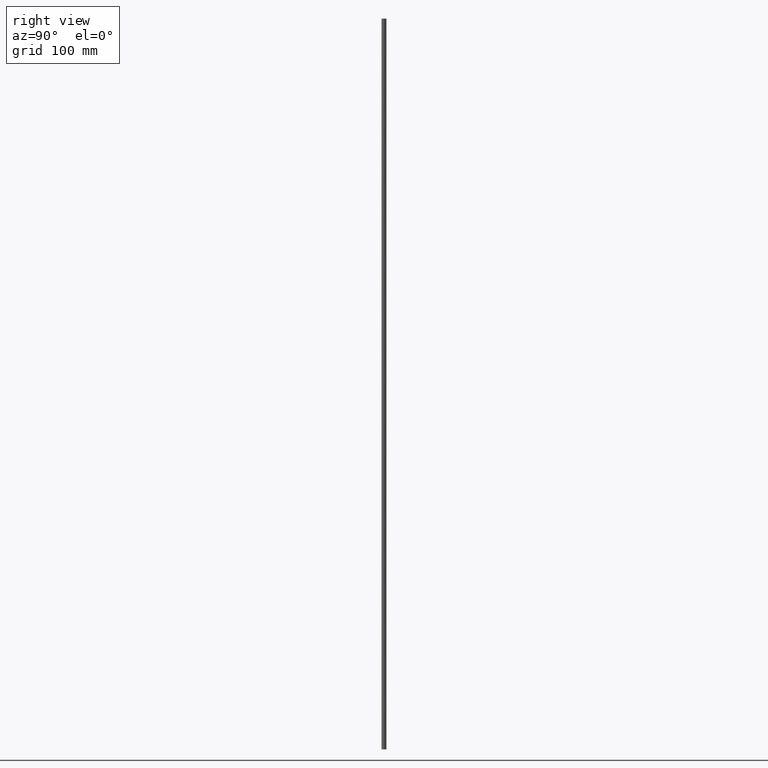
[diagram: clean part render]
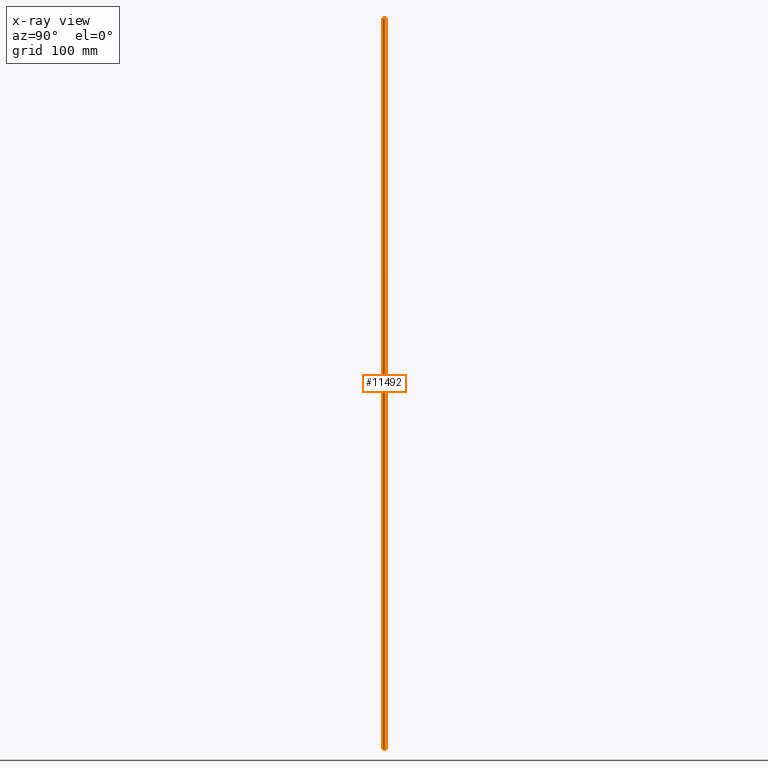
[diagram: x-ray — body ghosted, one internal face saturated and labeled with its STEP entity id]
A machine part, right view, then the same camera in x-ray: the body is ghosted and one INTERNAL B-rep face — a face not visible from any outside direction — is saturated and labeled: STEP entity #11492.
In plain terms, the highlighted face is a freeform B-spline surface patch.
Its self-contained STEP definition (entity closure, byte-faithful):
#11390=CARTESIAN_POINT('',(0.206559910649327,-1.737766671136416,1024.999977450000900));
#11391=CARTESIAN_POINT('',(0.156825775116461,-1.743678327035060,1024.999977450000000));
#11392=CARTESIAN_POINT('',(0.106834944186000,-1.746735897238267,1024.999977450000000));
#11393=CARTESIAN_POINT('',(-1.639900953052267,-1.853570841424267,1024.999977450000200));
#11394=CARTESIAN_POINT('',(-1.746735897238267,-0.106834944186000,1024.999977450000000));
#11395=CARTESIAN_POINT('',(-1.853570841424267,1.639900953052267,1024.999977450000200));
#11396=CARTESIAN_POINT('',(-0.106834944186000,1.746735897238267,1024.999977450000000));
#11397=CARTESIAN_POINT('',(0.206559910649327,-1.737766671136416,-25.624999436250057));
#11398=CARTESIAN_POINT('',(0.156825775116461,-1.743678327035060,-25.624999436250057));
#11399=CARTESIAN_POINT('',(0.106834944186000,-1.746735897238267,-25.624999436250050));
#11400=CARTESIAN_POINT('',(-1.639900953052267,-1.853570841424267,-25.624999436250054));
#11401=CARTESIAN_POINT('',(-1.746735897238267,-0.106834944186000,-25.624999436250050));
#11402=CARTESIAN_POINT('',(-1.853570841424267,1.639900953052267,-25.624999436250054));
#11403=CARTESIAN_POINT('',(-0.106834944186000,1.746735897238267,-25.624999436250050));
#11411=(BOUNDED_SURFACE()B_SPLINE_SURFACE(2,1,((#11390,#11397),(#11391,#11398),(#11392,#11399),(#11393,#11400),(#11394,#11401),(#11395,#11402),(#11396,#11403)),.UNSPECIFIED.,.F.,.F.,.U.)B_SPLINE_SURFACE_WITH_KNOTS((3,2,2,3),(2,2),(3.078760800517997,3.141592653589793,4.712388980384690,6.283185307179586),(0.0,1050.624976886249900),.UNSPECIFIED.)GEOMETRIC_REPRESENTATION_ITEM()RATIONAL_B_SPLINE_SURFACE(((0.977505800795127,0.977505800795127),(0.988284271247462,0.988284271247462),(1.0,1.0),(0.707106781186548,0.707106781186548),(1.0,1.0),(0.707106781186548,0.707106781186548),(1.0,1.0)))REPRESENTATION_ITEM('')SURFACE());
#11412=CARTESIAN_POINT('',(0.206559949063593,-1.737766666570298,4.543085E-014));
#11413=VERTEX_POINT('',#11412);
#11414=CARTESIAN_POINT('',(-1.750000000000000,0.0,0.0));
#11415=VERTEX_POINT('',#11414);
#11416=CARTESIAN_POINT('',(0.206559949063593,-1.737766666570298,4.543085E-014));
#11417=CARTESIAN_POINT('',(0.103642248211220,-1.750000000000000,0.0));
#11418=CARTESIAN_POINT('',(0.0,-1.750000000000000,0.0));
#11419=CARTESIAN_POINT('',(-1.750000000000000,-1.750000000000000,0.0));
#11420=CARTESIAN_POINT('',(-1.750000000000000,0.0,0.0));
#11428=(BOUNDED_CURVE()B_SPLINE_CURVE(2,(#11416,#11417,#11418,#11419,#11420),.UNSPECIFIED.,.F.,.U.)B_SPLINE_CURVE_WITH_KNOTS((3,2,3),(0.229562466043829,0.250000000000000,0.500000000000000),.UNSPECIFIED.)CURVE()GEOMETRIC_REPRESENTATION_ITEM()RATIONAL_B_SPLINE_CURVE((0.956026739542823,0.976055939579871,1.0,0.707106781186547,1.0))REPRESENTATION_ITEM(''));
#11429=EDGE_CURVE('',#11413,#11415,#11428,.T.);
#11430=ORIENTED_EDGE('',*,*,#11429,.F.);
#11431=CARTESIAN_POINT('',(0.206559949063739,-1.737766666570280,999.999977999999940));
#11432=VERTEX_POINT('',#11431);
#11433=CARTESIAN_POINT('',(0.206559949063739,-1.737766666570280,999.999977999999940));
#11434=CARTESIAN_POINT('',(0.206559949063593,-1.737766666570298,4.543085E-014));
#11435=QUASI_UNIFORM_CURVE('',1,(#11433,#11434),.UNSPECIFIED.,.F.,.U.);
#11436=EDGE_CURVE('',#11432,#11413,#11435,.T.);
#11437=ORIENTED_EDGE('',*,*,#11436,.F.);
#11438=CARTESIAN_POINT('',(-1.750000000000000,0.0,999.999977999999940));
#11439=VERTEX_POINT('',#11438);
#11440=CARTESIAN_POINT('',(0.206559949063739,-1.737766666570280,999.999977999999940));
#11441=CARTESIAN_POINT('',(0.103642248211367,-1.750000000000000,999.999977999999830));
#11442=CARTESIAN_POINT('',(0.0,-1.750000000000000,999.999977999999940));
#11443=CARTESIAN_POINT('',(-1.750000000000000,-1.750000000000000,999.999977999999940));
#11444=CARTESIAN_POINT('',(-1.750000000000000,0.0,999.999977999999940));
#11452=(BOUNDED_CURVE()B_SPLINE_CURVE(2,(#11440,#11441,#11442,#11443,#11444),.UNSPECIFIED.,.F.,.U.)B_SPLINE_CURVE_WITH_KNOTS((3,2,3),(0.229562466043801,0.250000000000000,0.500000000000000),.UNSPECIFIED.)CURVE()GEOMETRIC_REPRESENTATION_ITEM()RATIONAL_B_SPLINE_CURVE((0.956026739542767,0.976055939579838,1.0,0.707106781186547,1.0))REPRESENTATION_ITEM(''));
#11453=EDGE_CURVE('',#11432,#11439,#11452,.T.);
#11454=ORIENTED_EDGE('',*,*,#11453,.T.);
#11455=CARTESIAN_POINT('',(-0.106834967930330,1.746735895786001,999.999977999999940));
#11456=VERTEX_POINT('',#11455);
#11457=CARTESIAN_POINT('',(-1.750000000000000,0.0,999.999977999999940));
#11458=CARTESIAN_POINT('',(-1.750000000000000,1.646235572244982,999.999977999999830));
#11459=CARTESIAN_POINT('',(-0.106834967930330,1.746735895786002,999.999977999999940));
#11467=(BOUNDED_CURVE()B_SPLINE_CURVE(2,(#11457,#11458,#11459),.UNSPECIFIED.,.F.,.U.)B_SPLINE_CURVE_WITH_KNOTS((3,3),(0.500000000000000,0.739332957550924),.UNSPECIFIED.)CURVE()GEOMETRIC_REPRESENTATION_ITEM()RATIONAL_B_SPLINE_CURVE((1.0,0.719603998779066,0.976072031619401))REPRESENTATION_ITEM(''));
#11468=EDGE_CURVE('',#11439,#11456,#11467,.T.);
#11469=ORIENTED_EDGE('',*,*,#11468,.T.);
#11470=CARTESIAN_POINT('',(-0.106834967930256,1.746735895786006,4.618528E-014));
#11471=VERTEX_POINT('',#11470);
#11472=CARTESIAN_POINT('',(-0.106834967930330,1.746735895786001,999.999977999999940));
#11473=CARTESIAN_POINT('',(-0.106834967930256,1.746735895786006,4.618528E-014));
#11474=QUASI_UNIFORM_CURVE('',1,(#11472,#11473),.UNSPECIFIED.,.F.,.U.);
#11475=EDGE_CURVE('',#11456,#11471,#11474,.T.);
#11476=ORIENTED_EDGE('',*,*,#11475,.T.);
#11477=CARTESIAN_POINT('',(-1.750000000000000,0.0,0.0));
#11478=CARTESIAN_POINT('',(-1.750000000000000,1.646235572245110,0.0));
#11479=CARTESIAN_POINT('',(-0.106834967930256,1.746735895786006,4.618528E-014));
#11487=(BOUNDED_CURVE()B_SPLINE_CURVE(2,(#11477,#11478,#11479),.UNSPECIFIED.,.F.,.U.)B_SPLINE_CURVE_WITH_KNOTS((3,3),(0.500000000000000,0.739332957550937),.UNSPECIFIED.)CURVE()GEOMETRIC_REPRESENTATION_ITEM()RATIONAL_B_SPLINE_CURVE((1.0,0.719603998779050,0.976072031619430))REPRESENTATION_ITEM(''));
#11488=EDGE_CURVE('',#11415,#11471,#11487,.T.);
#11489=ORIENTED_EDGE('',*,*,#11488,.F.);
#11490=EDGE_LOOP('',(#11430,#11437,#11454,#11469,#11476,#11489));
#11491=FACE_OUTER_BOUND('',#11490,.T.);
#11492=ADVANCED_FACE('',(#11491),#11411,.T.);